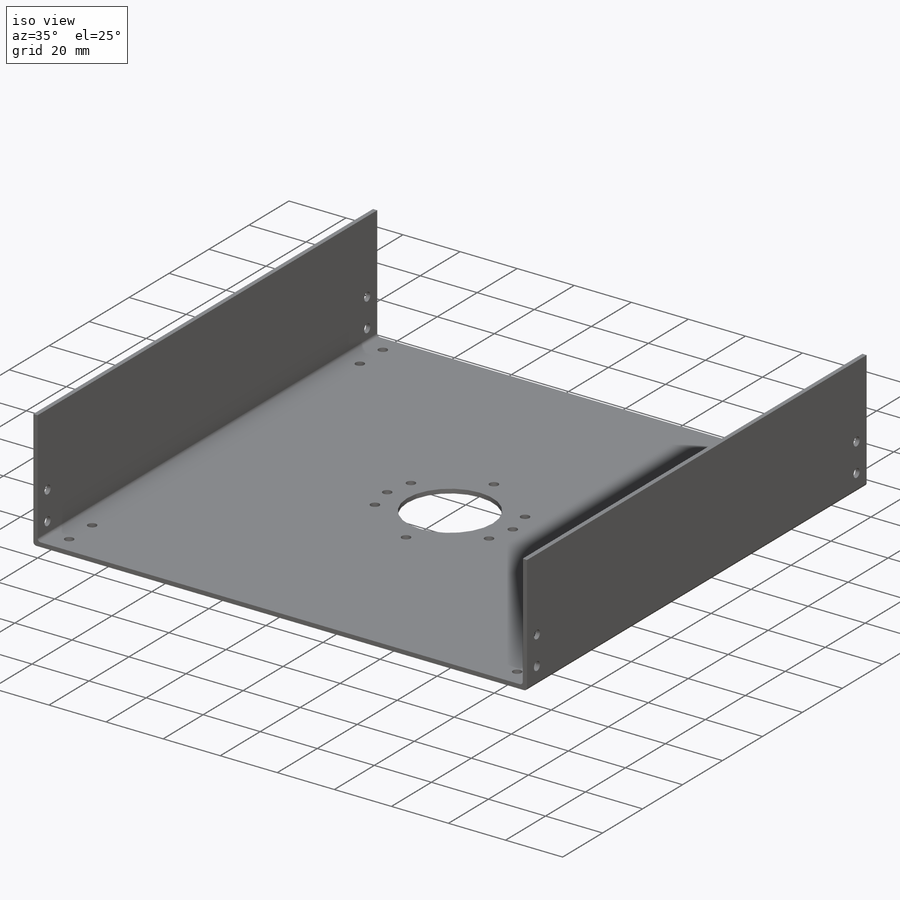
[diagram: iso view]
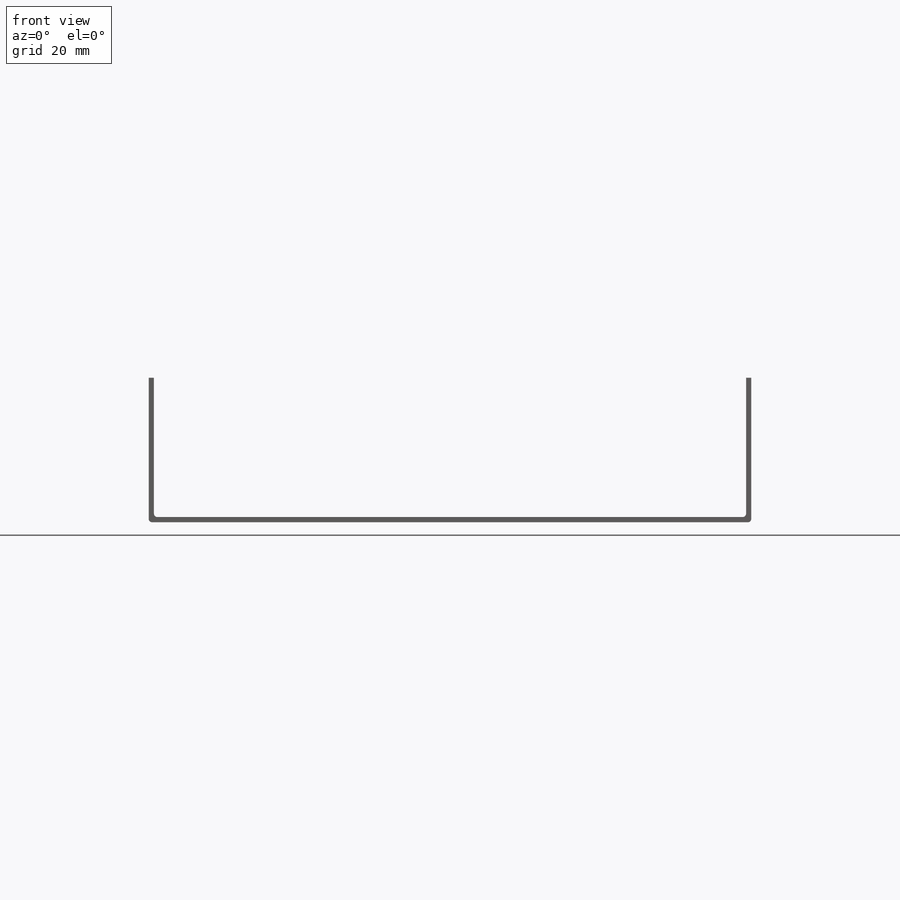
[diagram: front view]
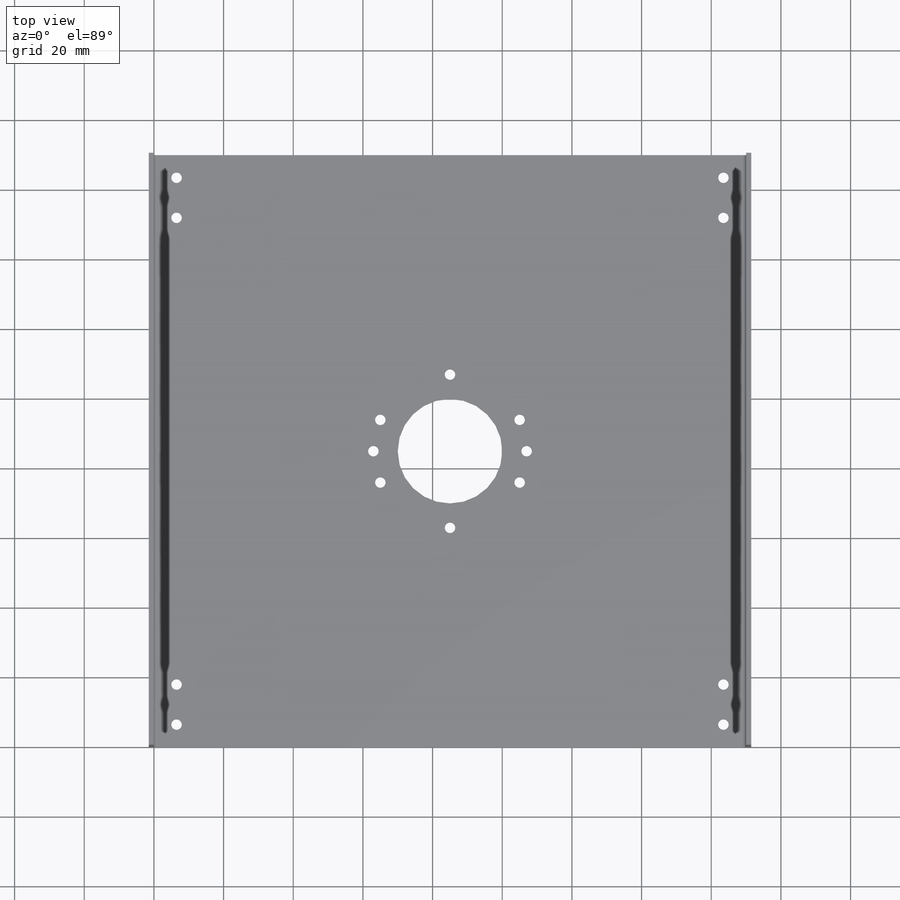
[diagram: top view]
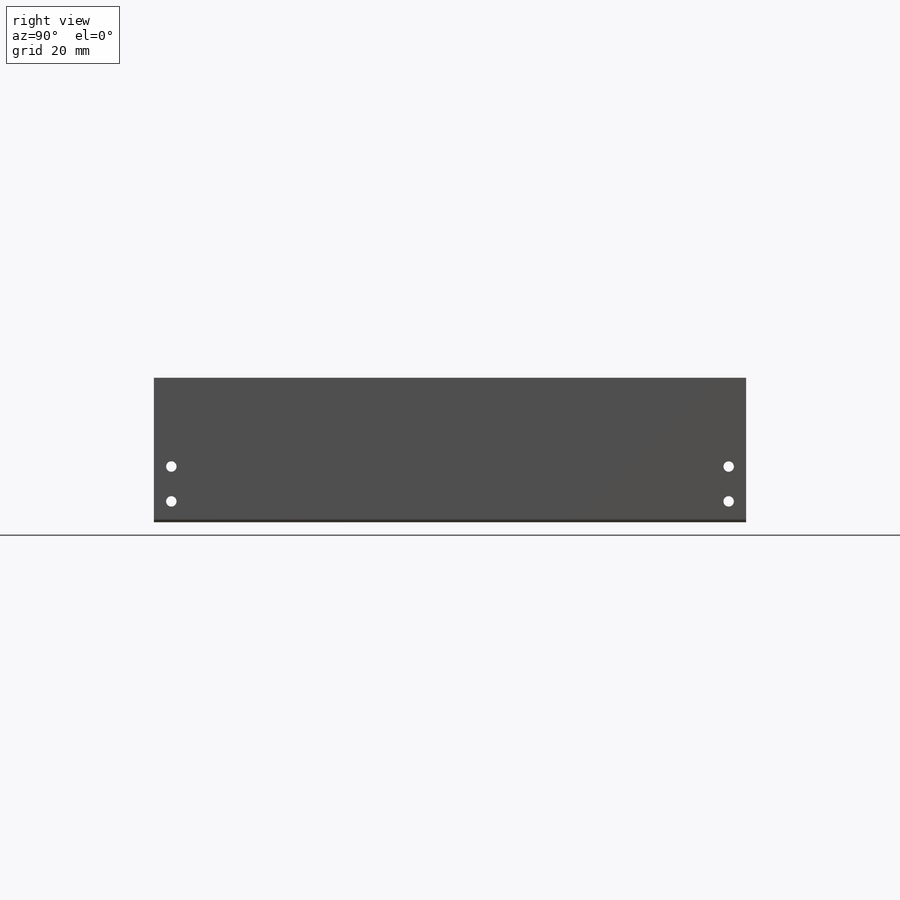
[diagram: right view]
SOLIDWORKS PART (.sldprt)
format: sldprt  version: not decoded by parser v0  size: 364,544 bytes
history: native  units: mm
features: sketch x9, cut_extrude x5, fillet x4, extrude x3, material x1 (+13 scaffold rows collapsed)
feature tree (35):
  scaffold x13  (default folders/planes/origin — collapsed)
  material  "Material <not specified>"
  sketch  "Sketch2"  dims[c1.D3=~7.598542mm c1.D1=170.0mm c1.D2=170.0mm c2.D3=22.0mm c2.D4=22.0mm c2.D5=22.0mm c2.D6=22.0mm]
  extrude  "Boss-Extrude1"  Depth=1.5mm
  sketch  "Sketch5"  dims[c1.D1=30.0mm c1.D2=30.0mm c2.D1=170.0mm c2.D2=85.0mm c2.D3=85.0mm]
  cut_extrude  "Cut-Extrude1"  Depth=5mm
  sketch  "Sketch6"  dims[c1.D1=~4.097232mm c1.D5=~2.048616mm c2.D1=3.0mm c2.D2=65.0mm c3.D1=20.0mm c3.D3=20.0mm c3.D4=30.0mm c4.D1=6.0mm c4.D3=76.0mm c4.D4=76.0mm c5.D1=65.0mm c5.D5=18.0mm]
  cut_extrude  "Cut-Extrude2"  Depth=5mm
  sketch  "Sketch7"  dims[c1.D1=6.5mm c1.D2=6.5mm c1.D3=6.5mm c1.D4=~5.830952mm c2.D4=90.0deg c3.D4=6.5mm c3.D5=6.5mm c3.D6=6.5mm c3.D7=6.5mm c3.D8=6.5mm]
  cut_extrude  "Cut-Extrude3"  Depth=5mm
  sketch  "Sketch8"  dims[D1=6.5mm D2=18.0mm]
  cut_extrude  "Cut-Extrude4"  Depth=10mm
  sketch  "Sketch9"  dims[c1.D4=~2.176116mm c1.D3=~1.897189mm c1.D5=~0.924722mm c1.D1=41.5mm c1.D2=170.0mm c2.D3=5.0mm c2.D4=15.0mm c2.D5=5.0mm c2.D6=10.0mm c2.D7=5.0mm c2.D8=5.0mm c2.D9=5.0mm c3.D3=5.0mm c3.D4=15.0mm c3.D5=165.5mm c3.D6=165.5mm c3.D7=5.0mm c3.D8=15.0mm c3.D9=5.0mm]
  extrude  "Boss-Extrude2"  Depth=1.5mm
  sketch  "Sketch14"  dims[D1=10.0mm D2=5.0mm D3=5.0mm D4=5.0mm D5=5.0mm D6=5.0mm D7=10.0mm D8=5.0mm]
  fillet  "Fillet2"  Radius=1mm
  fillet  "Fillet3"  Radius=1mm
  sketch  "Sketch10"  dims[D1=41.5mm D2=170.0mm]
  extrude  "Boss-Extrude3"  Depth=1.5mm
  fillet  "Fillet4"  Radius=1mm
  fillet  "Fillet5"  Radius=1mm
  sketch  "Sketch15"  dims[D1=5.0mm D2=5.0mm D3=10.0mm D4=5.0mm D5=5.0mm D6=5.0mm D7=10.0mm D8=5.0mm]
  cut_extrude  "Cut-Extrude6"  Depth=10000mm
decode coverage: 21 of 21 modeling features carry decoded parameters
note: ~ marks probable driven/reference dimensions
note: suppression state not decoded; provenance and decode notes live in map.json
